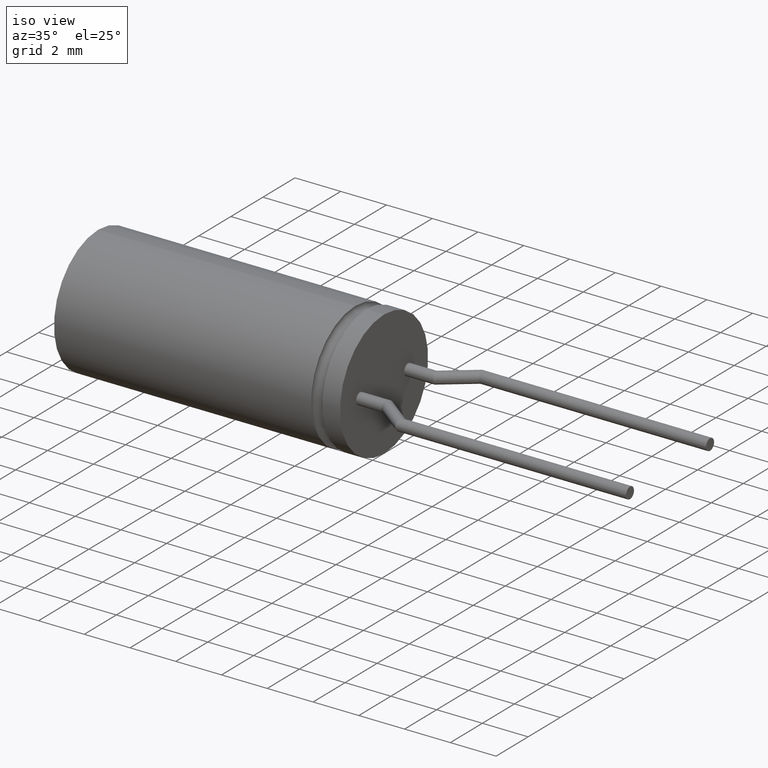
[diagram: clean part render]
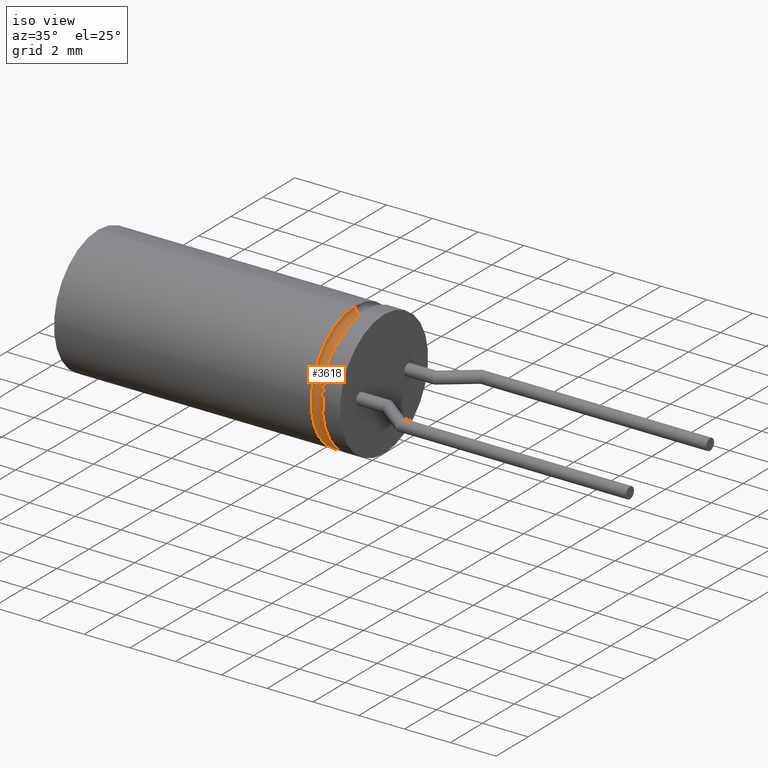
[diagram: same view with one face highlighted and labeled with its STEP entity id]
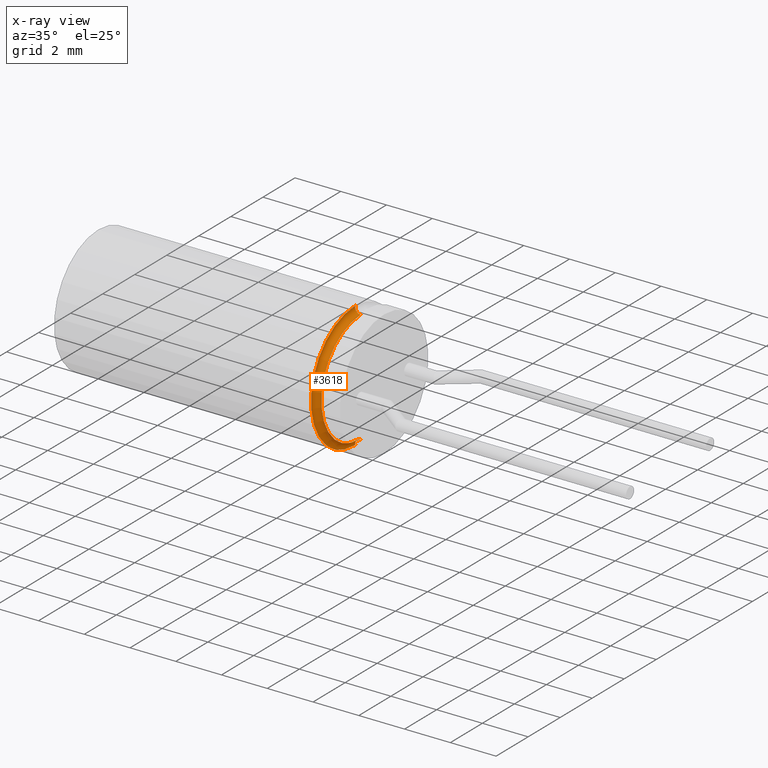
[diagram: x-ray of the same camera — body ghosted, the highlighted face saturated]
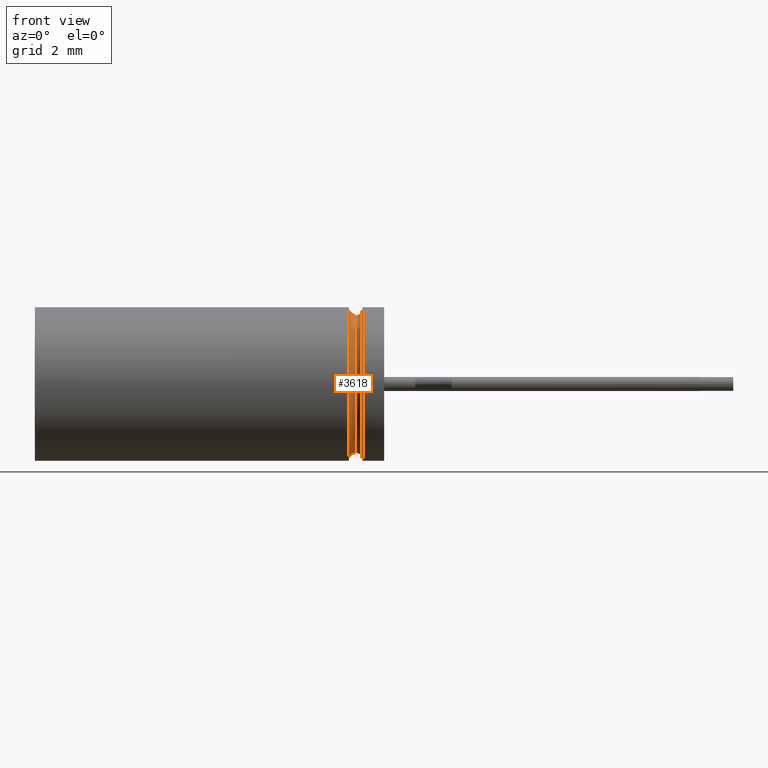
[diagram: same view with one face highlighted and labeled with its STEP entity id]
A machine part, iso view. The second image highlights one B-rep face of the part: STEP entity #3618.
The next image is the same camera in x-ray: the body ghosted, the highlighted face saturated — about 0% of this face is hidden behind the body in this view.
A second angle (front view) of the same face is appended — the face is thin or edge-on in the first view.
In plain terms, the highlighted toroidal blend (fillet) surface has major radius 2.7067 mm and minor (blend) radius 0.2459 mm.
Its self-contained STEP definition (entity closure, byte-faithful):
#91 = CARTESIAN_POINT ( 'NONE',  ( 11.48195000000000100, 0.0000000000000000000, 0.0000000000000000000 ) ) ;
#188 = ORIENTED_EDGE ( 'NONE', *, *, #501, .F. ) ;
#270 = CIRCLE ( 'NONE', #2986, 2.750000000000000000 ) ;
#290 = DIRECTION ( 'NONE',  ( -0.0000000000000000000, -1.000000000000000000, -0.0000000000000000000 ) ) ;
#354 = AXIS2_PLACEMENT_3D ( 'NONE', #91, #654, #2605 ) ;
#435 = CIRCLE ( 'NONE', #1873, 0.2458500000000001500 ) ;
#501 = EDGE_CURVE ( 'NONE', #1721, #2073, #684, .T. ) ;
#576 = EDGE_CURVE ( 'NONE', #3143, #1721, #3128, .T. ) ;
#654 = DIRECTION ( 'NONE',  ( 1.000000000000000000, -0.0000000000000000000, -0.0000000000000000000 ) ) ;
#684 = CIRCLE ( 'NONE', #1140, 0.2458500000000001500 ) ;
#756 = ORIENTED_EDGE ( 'NONE', *, *, #576, .F. ) ;
#1082 = DIRECTION ( 'NONE',  ( 0.0000000000000000000, 1.224646799147353000E-016, 1.000000000000000000 ) ) ;
#1140 = AXIS2_PLACEMENT_3D ( 'NONE', #2274, #290, #2862 ) ;
#1210 = ORIENTED_EDGE ( 'NONE', *, *, #1644, .T. ) ;
#1458 = CARTESIAN_POINT ( 'NONE',  ( 11.48195000000000100, 0.0000000000000000000, -2.460811535560197600 ) ) ;
#1505 = FACE_OUTER_BOUND ( 'NONE', #1511, .T. ) ;
#1511 = EDGE_LOOP ( 'NONE', ( #756, #2883, #1210, #188 ) ) ;
#1529 = AXIS2_PLACEMENT_3D ( 'NONE', #2630, #3486, #2356 ) ;
#1644 = EDGE_CURVE ( 'NONE', #3077, #2073, #270, .T. ) ;
#1671 = CARTESIAN_POINT ( 'NONE',  ( 11.48195000000000100, 3.314704385899056200E-016, 2.706661535560197500 ) ) ;
#1721 = VERTEX_POINT ( 'NONE', #1458 ) ;
#1873 = AXIS2_PLACEMENT_3D ( 'NONE', #1671, #1895, #1082 ) ;
#1895 = DIRECTION ( 'NONE',  ( 0.0000000000000000000, 1.000000000000000000, -1.224646799147353200E-016 ) ) ;
#2073 = VERTEX_POINT ( 'NONE', #3589 ) ;
#2274 = CARTESIAN_POINT ( 'NONE',  ( 11.48195000000000100, 0.0000000000000000000, -2.706661535560197500 ) ) ;
#2356 = DIRECTION ( 'NONE',  ( 0.0000000000000000000, 0.0000000000000000000, -1.000000000000000000 ) ) ;
#2605 = DIRECTION ( 'NONE',  ( 0.0000000000000000000, 0.0000000000000000000, -1.000000000000000000 ) ) ;
#2630 = CARTESIAN_POINT ( 'NONE',  ( 11.48195000000000100, 0.0000000000000000000, 0.0000000000000000000 ) ) ;
#2682 = EDGE_CURVE ( 'NONE', #3143, #3077, #435, .T. ) ;
#2833 = TOROIDAL_SURFACE ( 'NONE', #354, 2.706661535560197500, 0.2458500000000000400 ) ;
#2843 = CARTESIAN_POINT ( 'NONE',  ( 11.48195000000000100, 3.013624970328679500E-016, 2.460811535560197600 ) ) ;
#2862 = DIRECTION ( 'NONE',  ( 0.0000000000000000000, 0.0000000000000000000, -1.000000000000000000 ) ) ;
#2883 = ORIENTED_EDGE ( 'NONE', *, *, #2682, .T. ) ;
#2986 = AXIS2_PLACEMENT_3D ( 'NONE', #3073, #3352, #3593 ) ;
#3073 = CARTESIAN_POINT ( 'NONE',  ( 11.23995000000000000, 0.0000000000000000000, 0.0000000000000000000 ) ) ;
#3077 = VERTEX_POINT ( 'NONE', #3118 ) ;
#3118 = CARTESIAN_POINT ( 'NONE',  ( 11.23995000000000000, 3.367778697655218500E-016, 2.749999999999997300 ) ) ;
#3128 = CIRCLE ( 'NONE', #1529, 2.460811535560197600 ) ;
#3143 = VERTEX_POINT ( 'NONE', #2843 ) ;
#3352 = DIRECTION ( 'NONE',  ( 1.000000000000000000, -0.0000000000000000000, -0.0000000000000000000 ) ) ;
#3486 = DIRECTION ( 'NONE',  ( 1.000000000000000000, -0.0000000000000000000, -0.0000000000000000000 ) ) ;
#3589 = CARTESIAN_POINT ( 'NONE',  ( 11.23995000000000000, 0.0000000000000000000, -2.749999999999997300 ) ) ;
#3593 = DIRECTION ( 'NONE',  ( 0.0000000000000000000, 0.0000000000000000000, -1.000000000000000000 ) ) ;
#3618 = ADVANCED_FACE ( 'NONE', ( #1505 ), #2833, .F. ) ;